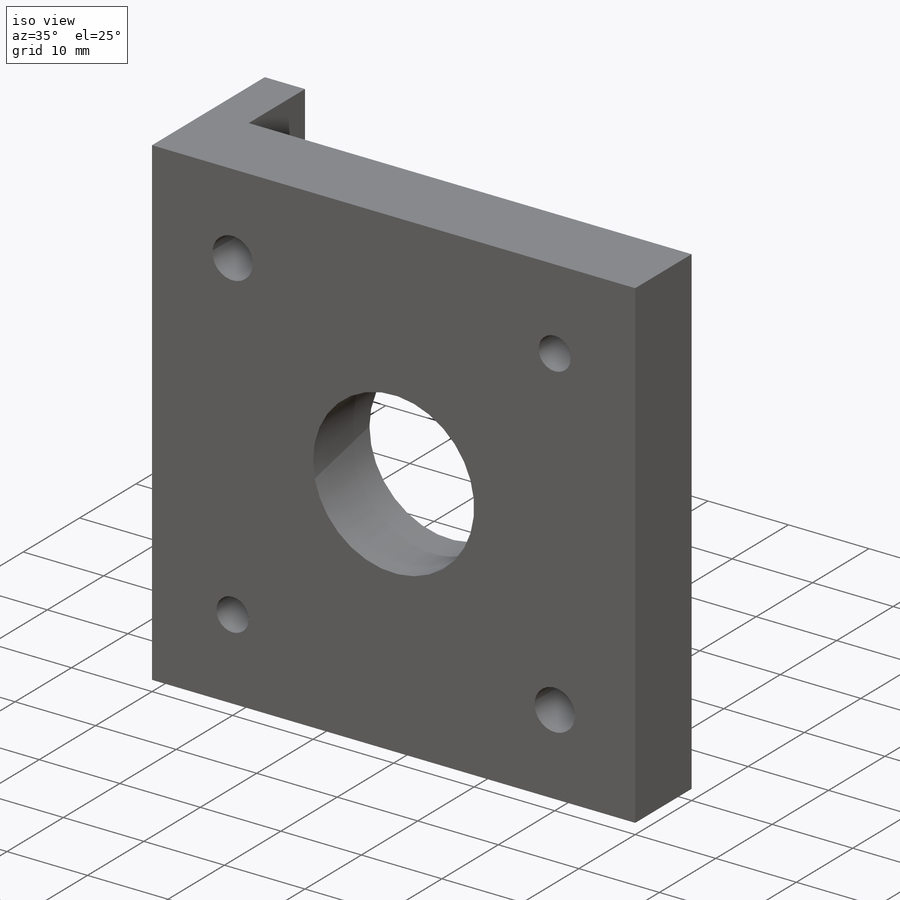
[diagram: iso view]
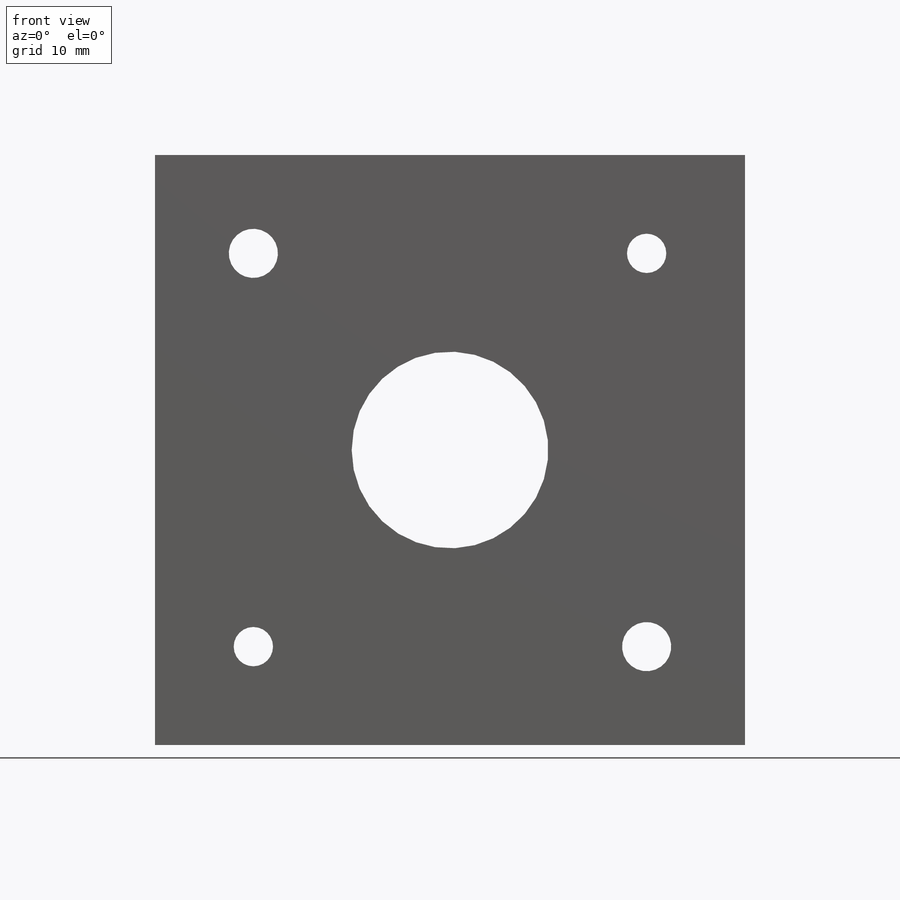
[diagram: front view]
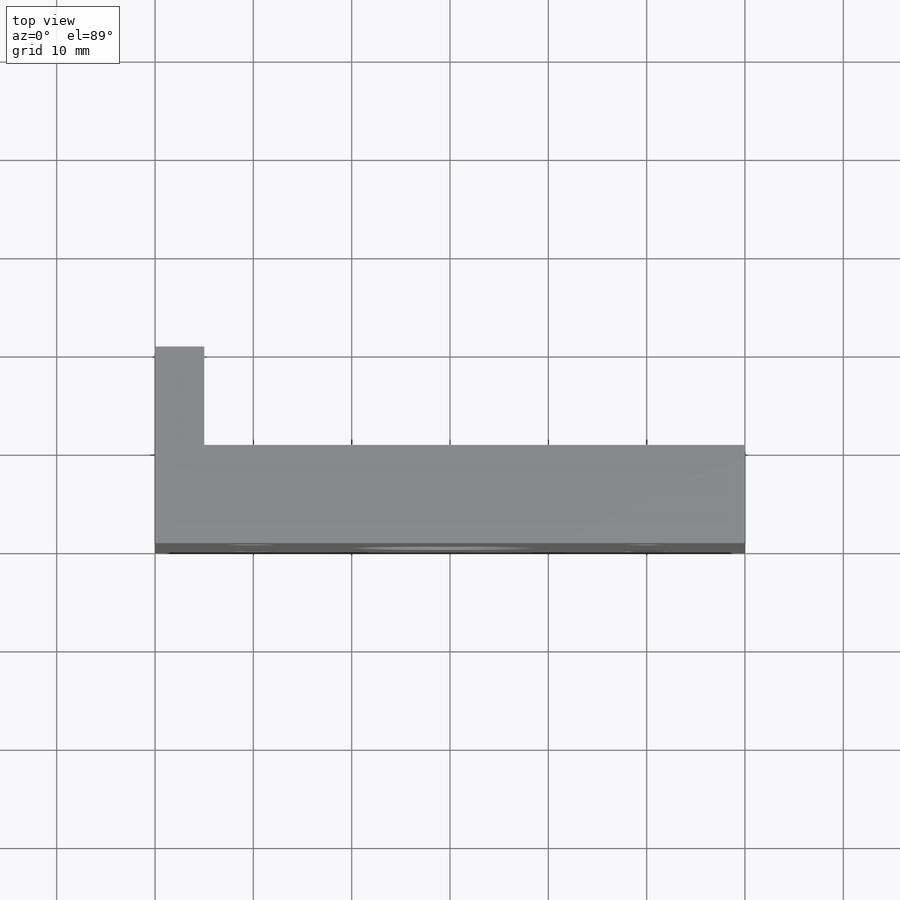
[diagram: top view]
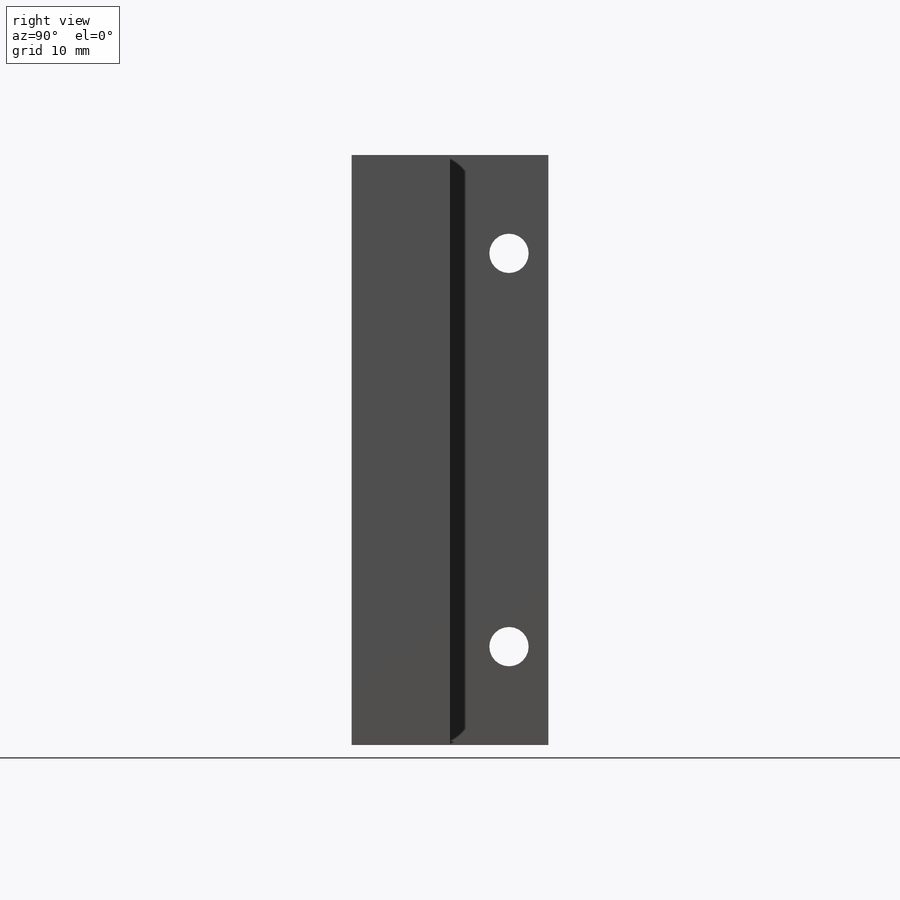
[diagram: right view]
SOLIDWORKS PART (.sldprt)
format: sldprt  version: not decoded by parser v0  size: 205,824 bytes
history: native  units: mm
features: sketch x5, extrude x3, cut_extrude x3, material x1 (+16 scaffold rows collapsed)
feature tree (28):
  scaffold x16  (default folders/planes/origin — collapsed)
  material  "Material <not specified>"
  sketch  "Sketch1"  dims[D1=60.0mm D2=60.0mm]
  extrude  "Boss-Extrude1"  Depth=10mm
  sketch  "Sketch2"  dims[D1=20.0mm]
  sketch  "Sketch4"  dims[D1=5.0mm]
  extrude  "Boss-Extrude2"  Depth=10mm
  sketch  "Sketch5"  dims[D1=4.0mm D2=4.0mm D3=4.0mm D4=10.0mm D5=10.0mm D6=4.0mm]
  cut_extrude  "Cut-Extrude3"  [1 undecoded]
  cut_extrude  "Cut-Extrude5"  [1 undecoded]
  extrude  "supportLS<1>@LSA1"  [1 undecoded]
  sketch  "Sketch7"  dims[D1=10.0mm D2=10.0mm D3=10.0mm D4=10.0mm]
  cut_extrude  "Cut-Extrude6"  [1 undecoded]
decode coverage: 7 of 11 modeling features carry decoded parameters
note: 4 parameter values undecoded
summary: no parameter record found for 4 features
note: suppression state not decoded; provenance and decode notes live in map.json
